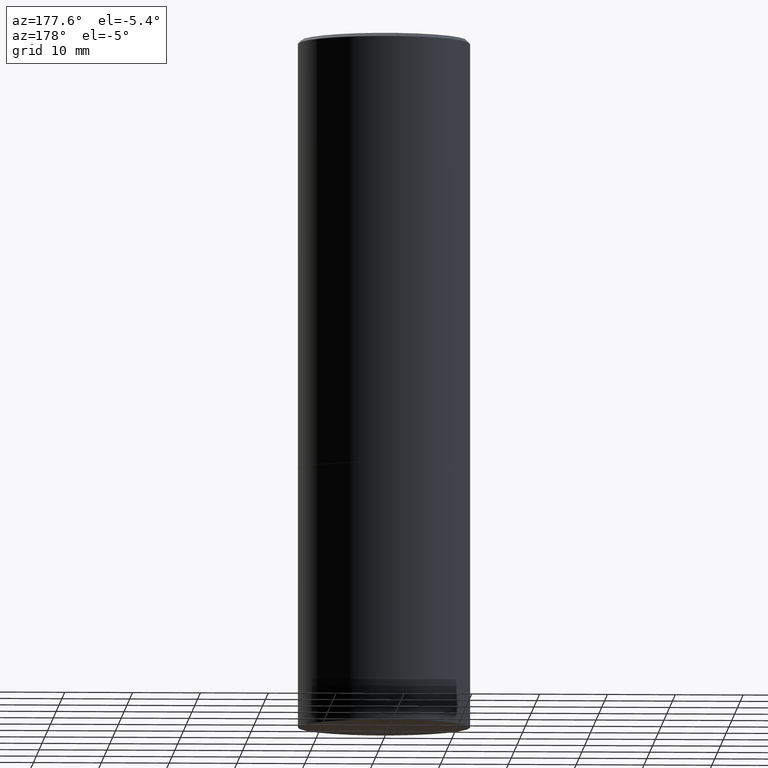
[diagram: clean part render]
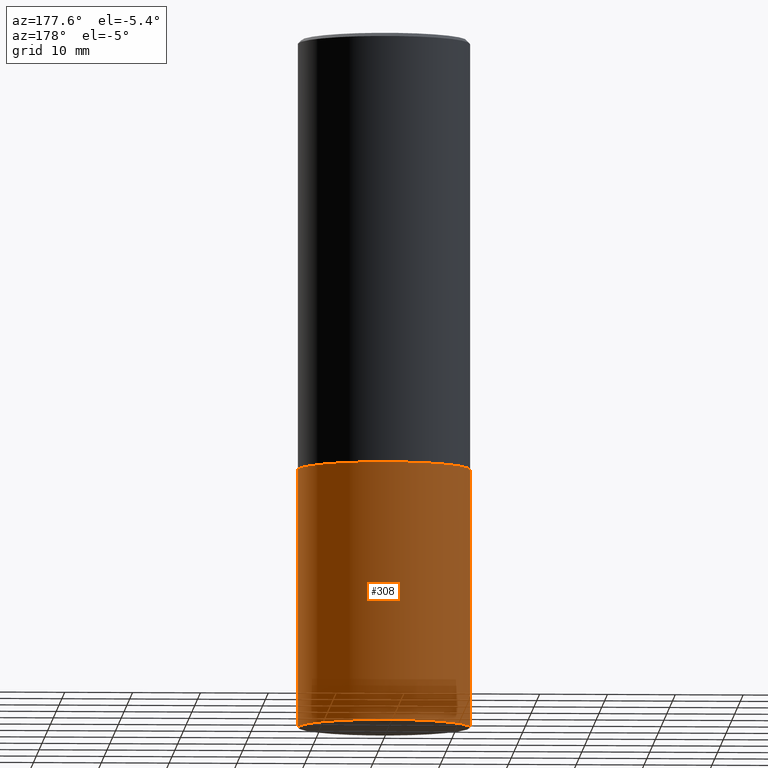
[diagram: same view with one face highlighted and labeled with its STEP entity id]
A machine part, auxiliary view. The second image highlights one B-rep face of the part: STEP entity #308.
In plain terms, the highlighted cylindrical surface (partial cylindrical patch) has radius 12.7 mm, axis along (-0, 0, 1).
Its self-contained STEP definition (entity closure, byte-faithful):
#24 = AXIS2_PLACEMENT_3D ( 'NONE', #390, #74, #307 ) ;
#43 = ORIENTED_EDGE ( 'NONE', *, *, #378, .F. ) ;
#64 = CARTESIAN_POINT ( 'NONE',  ( 9.781875224740546387E-29, -1.396592535537258233E-14, -4.000000000000000000 ) ) ;
#73 = DIRECTION ( 'NONE',  ( -2.445468806185136877E-29, 3.491481338843145188E-15, 1.000000000000000000 ) ) ;
#74 = DIRECTION ( 'NONE',  ( -2.445468806185136597E-29, 3.491481338843145583E-15, 1.000000000000000000 ) ) ;
#88 = EDGE_CURVE ( 'NONE', #344, #164, #221, .T. ) ;
#94 = EDGE_CURVE ( 'NONE', #164, #305, #255, .T. ) ;
#96 = DIRECTION ( 'NONE',  ( -2.445468806185136597E-29, 3.491481338843145583E-15, 1.000000000000000000 ) ) ;
#107 = DIRECTION ( 'NONE',  ( -2.445468806185136597E-29, 3.491481338843145583E-15, 1.000000000000000000 ) ) ;
#109 = CARTESIAN_POINT ( 'NONE',  ( 0.5000000000000000000, -3.491481338843133355E-15, 2.438088387897967896E-29 ) ) ;
#112 = LINE ( 'NONE', #109, #340 ) ;
#138 = CARTESIAN_POINT ( 'NONE',  ( -0.5000000000000000000, -7.794600672439723496E-15, -2.500000000000000000 ) ) ;
#160 = EDGE_CURVE ( 'NONE', #344, #281, #112, .T. ) ;
#164 = VERTEX_POINT ( 'NONE', #200 ) ;
#174 = CARTESIAN_POINT ( 'NONE',  ( 6.113672015462842613E-29, -8.728703347107864943E-15, -2.500000000000000000 ) ) ;
#176 = VECTOR ( 'NONE', #188, 39.37007874015748143 ) ;
#184 = AXIS2_PLACEMENT_3D ( 'NONE', #64, #96, #350 ) ;
#188 = DIRECTION ( 'NONE',  ( -2.445468806185136877E-29, 3.491481338843145188E-15, 1.000000000000000000 ) ) ;
#192 = CIRCLE ( 'NONE', #349, 0.5000000000000000000 ) ;
#195 = EDGE_LOOP ( 'NONE', ( #327, #260, #43, #236 ) ) ;
#200 = CARTESIAN_POINT ( 'NONE',  ( -0.4999999999999993894, -1.047444401652945213E-14, -4.000000000000000000 ) ) ;
#221 = CIRCLE ( 'NONE', #184, 0.5000000000000000000 ) ;
#236 = ORIENTED_EDGE ( 'NONE', *, *, #160, .F. ) ;
#255 = LINE ( 'NONE', #312, #176 ) ;
#256 = CARTESIAN_POINT ( 'NONE',  ( 0.5000000000000000000, -1.222018468595099830E-14, -2.500000000000000000 ) ) ;
#260 = ORIENTED_EDGE ( 'NONE', *, *, #94, .T. ) ;
#263 = FACE_OUTER_BOUND ( 'NONE', #195, .T. ) ;
#281 = VERTEX_POINT ( 'NONE', #256 ) ;
#301 = DIRECTION ( 'NONE',  ( 1.000000000000000000, -6.982962677686269077E-15, 0.000000000000000000 ) ) ;
#304 = CARTESIAN_POINT ( 'NONE',  ( 0.4999999999999993894, -1.739617435425834338E-14, -4.000000000000000000 ) ) ;
#305 = VERTEX_POINT ( 'NONE', #138 ) ;
#307 = DIRECTION ( 'NONE',  ( 1.000000000000000000, -6.982962677686266711E-15, 4.876176775795935793E-29 ) ) ;
#308 = ADVANCED_FACE ( 'NONE', ( #263 ), #356, .T. ) ;
#312 = CARTESIAN_POINT ( 'NONE',  ( -0.5000000000000000000, 3.552713678800500929E-15, -2.459467545127452891E-29 ) ) ;
#327 = ORIENTED_EDGE ( 'NONE', *, *, #88, .T. ) ;
#340 = VECTOR ( 'NONE', #73, 39.37007874015748143 ) ;
#344 = VERTEX_POINT ( 'NONE', #304 ) ;
#349 = AXIS2_PLACEMENT_3D ( 'NONE', #174, #107, #301 ) ;
#350 = DIRECTION ( 'NONE',  ( 1.000000000000000000, -6.982962677686266711E-15, 0.000000000000000000 ) ) ;
#356 = CYLINDRICAL_SURFACE ( 'NONE', #24, 0.5000000000000000000 ) ;
#378 = EDGE_CURVE ( 'NONE', #281, #305, #192, .T. ) ;
#390 = CARTESIAN_POINT ( 'NONE',  ( 0.000000000000000000, 0.000000000000000000, 0.000000000000000000 ) ) ;